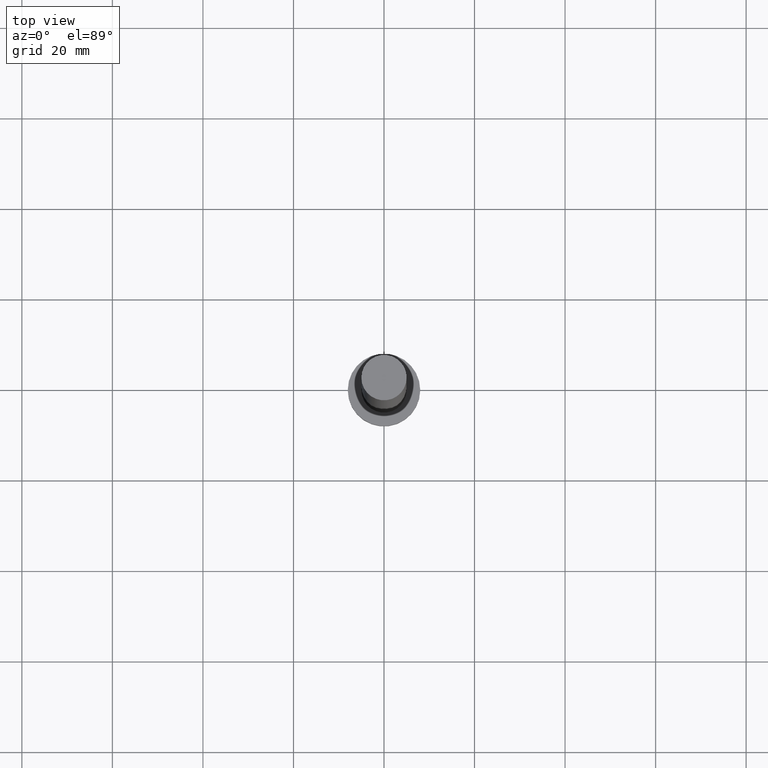
[diagram: clean part render]
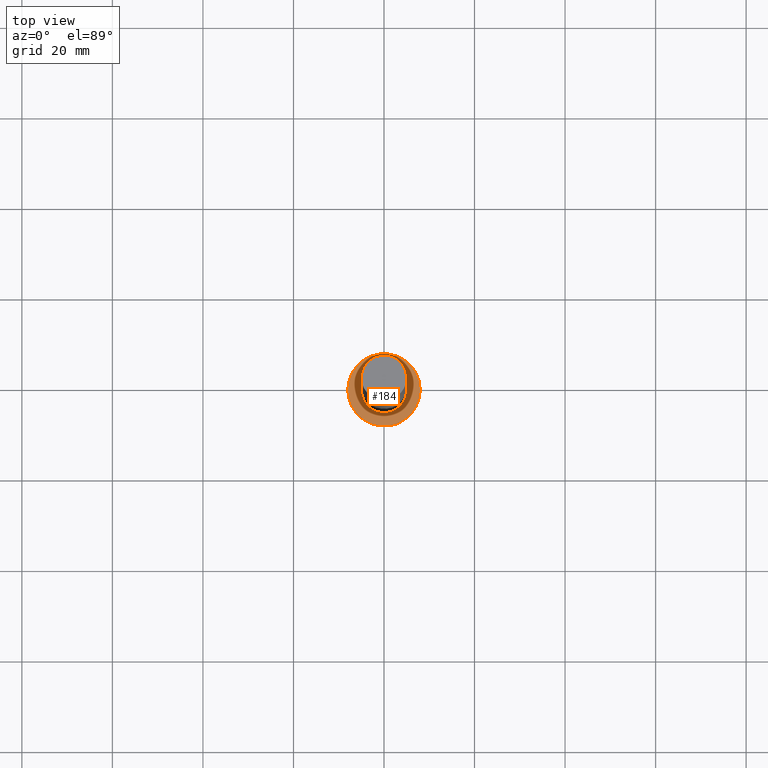
[diagram: same view with one face highlighted and labeled with its STEP entity id]
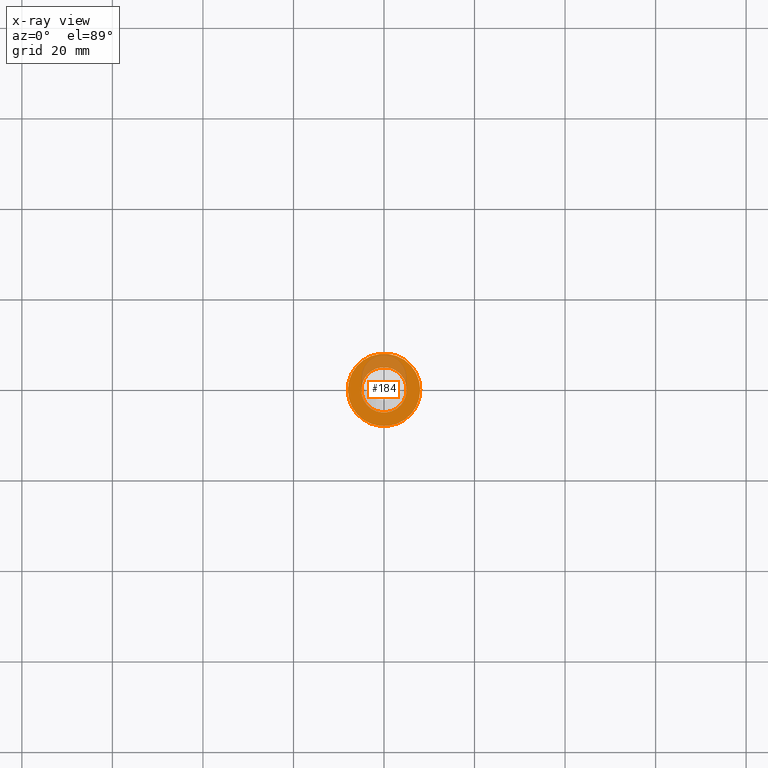
[diagram: x-ray of the same camera — body ghosted, the highlighted face saturated]
A machine part, top view. The second image highlights one B-rep face of the part: STEP entity #184.
The next image is the same camera in x-ray: the body ghosted, the highlighted face saturated — about 22% of this face is hidden behind the body in this view.
In plain terms, the highlighted planar face has unit normal (0, 0, 1).
Its self-contained STEP definition (entity closure, byte-faithful):
#1 = CARTESIAN_POINT ( 'NONE',  ( 0.000000000000000000, 0.000000000000000000, 5.000000000000000000 ) ) ;
#5 = EDGE_CURVE ( 'NONE', #61, #135, #111, .T. ) ;
#7 = AXIS2_PLACEMENT_3D ( 'NONE', #244, #173, #52 ) ;
#21 = ORIENTED_EDGE ( 'NONE', *, *, #45, .F. ) ;
#22 = CARTESIAN_POINT ( 'NONE',  ( -8.000000000000000000, 0.000000000000000000, 5.000000000000000000 ) ) ;
#24 = DIRECTION ( 'NONE',  ( 0.000000000000000000, 0.000000000000000000, 1.000000000000000000 ) ) ;
#25 = FACE_OUTER_BOUND ( 'NONE', #44, .T. ) ;
#30 = FACE_BOUND ( 'NONE', #42, .T. ) ;
#35 = AXIS2_PLACEMENT_3D ( 'NONE', #202, #242, #100 ) ;
#39 = ORIENTED_EDGE ( 'NONE', *, *, #5, .F. ) ;
#42 = EDGE_LOOP ( 'NONE', ( #21, #39 ) ) ;
#44 = EDGE_LOOP ( 'NONE', ( #91, #56 ) ) ;
#45 = EDGE_CURVE ( 'NONE', #135, #61, #155, .T. ) ;
#52 = DIRECTION ( 'NONE',  ( 1.000000000000000000, 0.000000000000000000, 0.000000000000000000 ) ) ;
#56 = ORIENTED_EDGE ( 'NONE', *, *, #251, .T. ) ;
#61 = VERTEX_POINT ( 'NONE', #128 ) ;
#71 = CARTESIAN_POINT ( 'NONE',  ( -5.000000000000000888, 0.000000000000000000, 5.000000000000000000 ) ) ;
#91 = ORIENTED_EDGE ( 'NONE', *, *, #121, .T. ) ;
#100 = DIRECTION ( 'NONE',  ( 1.000000000000000000, 0.000000000000000000, 0.000000000000000000 ) ) ;
#102 = PLANE ( 'NONE',  #160 ) ;
#111 = CIRCLE ( 'NONE', #113, 5.000000000000000888 ) ;
#113 = AXIS2_PLACEMENT_3D ( 'NONE', #197, #148, #220 ) ;
#121 = EDGE_CURVE ( 'NONE', #247, #233, #198, .T. ) ;
#128 = CARTESIAN_POINT ( 'NONE',  ( 5.000000000000000888, 6.123233995736767268E-16, 5.000000000000000000 ) ) ;
#135 = VERTEX_POINT ( 'NONE', #71 ) ;
#148 = DIRECTION ( 'NONE',  ( 0.000000000000000000, 0.000000000000000000, 1.000000000000000000 ) ) ;
#155 = CIRCLE ( 'NONE', #176, 5.000000000000000888 ) ;
#160 = AXIS2_PLACEMENT_3D ( 'NONE', #1, #170, #230 ) ;
#170 = DIRECTION ( 'NONE',  ( 0.000000000000000000, 0.000000000000000000, 1.000000000000000000 ) ) ;
#173 = DIRECTION ( 'NONE',  ( 0.000000000000000000, 0.000000000000000000, 1.000000000000000000 ) ) ;
#176 = AXIS2_PLACEMENT_3D ( 'NONE', #186, #24, #183 ) ;
#183 = DIRECTION ( 'NONE',  ( 1.000000000000000000, 0.000000000000000000, 0.000000000000000000 ) ) ;
#184 = ADVANCED_FACE ( 'NONE', ( #30, #25 ), #102, .T. ) ;
#186 = CARTESIAN_POINT ( 'NONE',  ( 0.000000000000000000, 0.000000000000000000, 5.000000000000000000 ) ) ;
#187 = CARTESIAN_POINT ( 'NONE',  ( 8.000000000000000000, 9.797174393178825657E-16, 5.000000000000000000 ) ) ;
#197 = CARTESIAN_POINT ( 'NONE',  ( 0.000000000000000000, 0.000000000000000000, 5.000000000000000000 ) ) ;
#198 = CIRCLE ( 'NONE', #7, 8.000000000000000000 ) ;
#202 = CARTESIAN_POINT ( 'NONE',  ( 0.000000000000000000, 0.000000000000000000, 5.000000000000000000 ) ) ;
#220 = DIRECTION ( 'NONE',  ( 1.000000000000000000, 0.000000000000000000, 0.000000000000000000 ) ) ;
#225 = CIRCLE ( 'NONE', #35, 8.000000000000000000 ) ;
#230 = DIRECTION ( 'NONE',  ( 1.000000000000000000, 0.000000000000000000, -0.000000000000000000 ) ) ;
#233 = VERTEX_POINT ( 'NONE', #187 ) ;
#242 = DIRECTION ( 'NONE',  ( 0.000000000000000000, 0.000000000000000000, 1.000000000000000000 ) ) ;
#244 = CARTESIAN_POINT ( 'NONE',  ( 0.000000000000000000, 0.000000000000000000, 5.000000000000000000 ) ) ;
#247 = VERTEX_POINT ( 'NONE', #22 ) ;
#251 = EDGE_CURVE ( 'NONE', #233, #247, #225, .T. ) ;